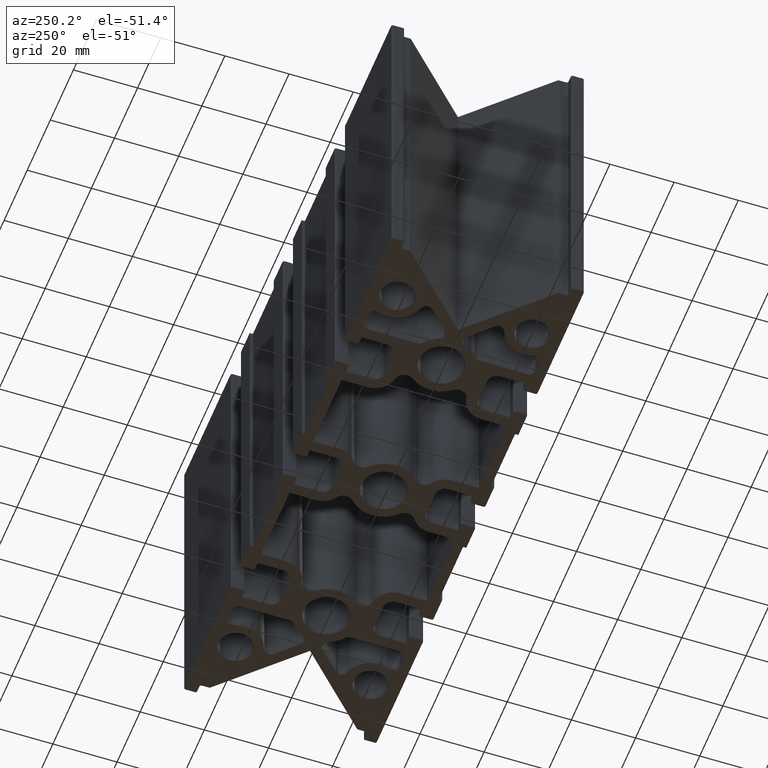
[diagram: clean part render]
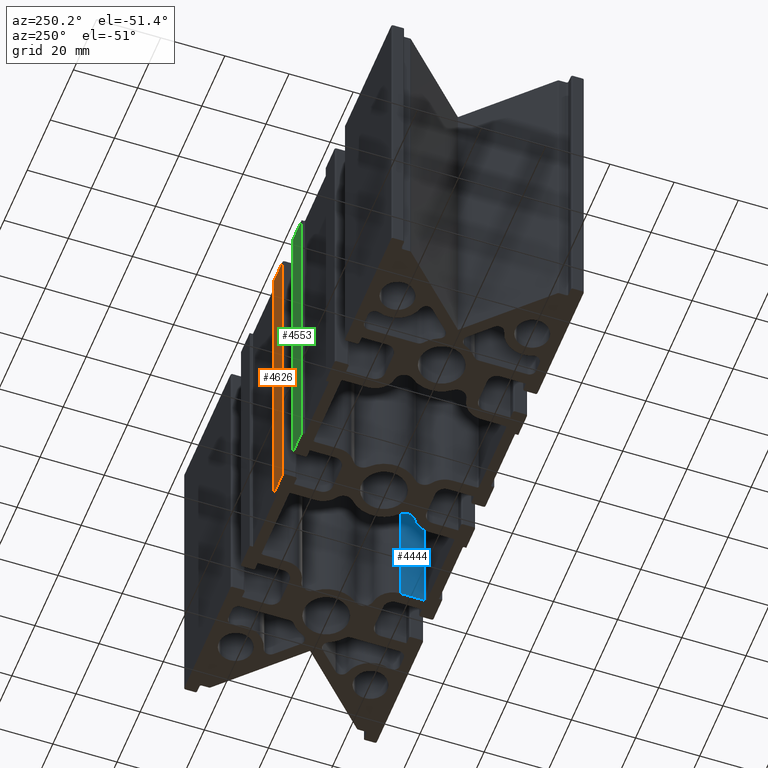
[diagram: same view with three faces highlighted in distinct colors, each labeled with its STEP entity id]
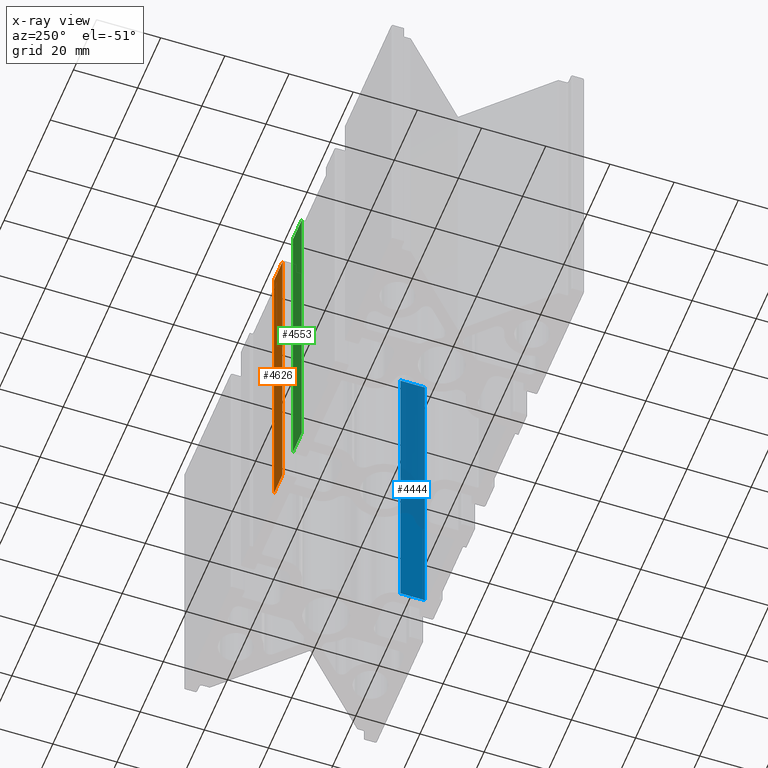
[diagram: x-ray of the same camera — body ghosted, the three highlighted faces saturated]
A machine part, auxiliary view with three faces highlighted in distinct colors.
The next image is the same camera in x-ray (body ghosted, the three faces saturated) — at least one of them is partly hidden behind the body in this view.
Their STEP definitions:

[orange] entity #4626 — the highlighted planar face has unit normal (-0, 1, 0).
#139=PLANE('',#5126);
#368=FACE_OUTER_BOUND('',#625,.T.);
#625=EDGE_LOOP('',(#4236,#4237,#4238,#4239));
#684=LINE('',#6710,#1125);
#1040=LINE('',#7818,#1481);
#1070=LINE('',#7892,#1511);
#1072=LINE('',#7895,#1513);
#1125=VECTOR('',#5303,10.);
#1481=VECTOR('',#6423,10.);
#1511=VECTOR('',#6503,10.);
#1513=VECTOR('',#6507,10.);
#1832=VERTEX_POINT('',#6707);
#1833=VERTEX_POINT('',#6709);
#2202=VERTEX_POINT('',#7815);
#2203=VERTEX_POINT('',#7817);
#2308=EDGE_CURVE('',#1832,#1833,#684,.T.);
#2863=EDGE_CURVE('',#2203,#2202,#1040,.T.);
#2902=EDGE_CURVE('',#1833,#2202,#1070,.T.);
#2904=EDGE_CURVE('',#2203,#1832,#1072,.T.);
#4236=ORIENTED_EDGE('',*,*,#2902,.F.);
#4237=ORIENTED_EDGE('',*,*,#2308,.F.);
#4238=ORIENTED_EDGE('',*,*,#2904,.F.);
#4239=ORIENTED_EDGE('',*,*,#2863,.T.);
#4626=ADVANCED_FACE('',(#368),#139,.T.);
#5126=AXIS2_PLACEMENT_3D('',#7894,#6505,#6506);
#5303=DIRECTION('',(-1.,-5.55111512312579E-16,0.));
#6423=DIRECTION('',(-1.,-5.55111512312579E-16,0.));
#6503=DIRECTION('',(0.,0.,-1.));
#6505=DIRECTION('center_axis',(-5.55111512312579E-16,1.,0.));
#6506=DIRECTION('ref_axis',(-1.,-5.55111512312579E-16,0.));
#6507=DIRECTION('',(0.,0.,1.));
#6707=CARTESIAN_POINT('',(12.1,30.,100.));
#6709=CARTESIAN_POINT('',(4.6,30.,100.));
#6710=CARTESIAN_POINT('',(12.1,30.,100.));
#7815=CARTESIAN_POINT('',(4.6,30.,0.));
#7817=CARTESIAN_POINT('',(12.1,30.,0.));
#7818=CARTESIAN_POINT('',(12.1,30.,0.));
#7892=CARTESIAN_POINT('',(4.6,30.,0.));
#7894=CARTESIAN_POINT('Origin',(12.1,30.,0.));
#7895=CARTESIAN_POINT('',(12.1,30.,0.));

[blue] entity #4444 — the highlighted planar face has unit normal (-1, -0, 0).
#53=PLANE('',#4846);
#186=FACE_OUTER_BOUND('',#430,.T.);
#430=EDGE_LOOP('',(#3283,#3284,#3285,#3286));
#763=LINE('',#7041,#1204);
#790=LINE('',#7140,#1231);
#791=LINE('',#7143,#1232);
#792=LINE('',#7144,#1233);
#1204=VECTOR('',#5556,10.);
#1231=VECTOR('',#5663,10.);
#1232=VECTOR('',#5666,10.);
#1233=VECTOR('',#5667,10.);
#1997=VERTEX_POINT('',#7038);
#1998=VERTEX_POINT('',#7040);
#2030=VERTEX_POINT('',#7138);
#2031=VERTEX_POINT('',#7142);
#2474=EDGE_CURVE('',#1997,#1998,#763,.T.);
#2524=EDGE_CURVE('',#1998,#2030,#790,.T.);
#2525=EDGE_CURVE('',#2030,#2031,#791,.T.);
#2526=EDGE_CURVE('',#1997,#2031,#792,.T.);
#3283=ORIENTED_EDGE('',*,*,#2525,.F.);
#3284=ORIENTED_EDGE('',*,*,#2524,.F.);
#3285=ORIENTED_EDGE('',*,*,#2474,.F.);
#3286=ORIENTED_EDGE('',*,*,#2526,.T.);
#4444=ADVANCED_FACE('',(#186),#53,.T.);
#4846=AXIS2_PLACEMENT_3D('',#7141,#5664,#5665);
#5556=DIRECTION('',(3.58332232308406E-15,-1.,0.));
#5663=DIRECTION('',(0.,0.,-1.));
#5664=DIRECTION('center_axis',(-1.,-3.58332232308406E-15,0.));
#5665=DIRECTION('ref_axis',(-3.58332232308406E-15,1.,0.));
#5666=DIRECTION('',(-3.58332232308406E-15,1.,0.));
#5667=DIRECTION('',(0.,0.,-1.));
#7038=CARTESIAN_POINT('',(34.7500000000001,-17.5999999999454,100.));
#7040=CARTESIAN_POINT('',(34.7500000000001,-25.2499999999978,100.));
#7041=CARTESIAN_POINT('',(34.75,-4.19056047769082,100.));
#7138=CARTESIAN_POINT('',(34.7500000000001,-25.2499999999978,0.));
#7140=CARTESIAN_POINT('',(34.7500000000001,-25.2499999999978,100.));
#7141=CARTESIAN_POINT('Origin',(34.7500000000001,-25.2499999999978,100.));
#7142=CARTESIAN_POINT('',(34.7500000000001,-17.5999999999454,0.));
#7143=CARTESIAN_POINT('',(34.75,-4.19056047769082,0.));
#7144=CARTESIAN_POINT('',(34.7500000000001,-17.5999999999454,100.));

[green] entity #4553 — the highlighted planar face has unit normal (-0, -1, 0).
#96=PLANE('',#5021);
#295=FACE_OUTER_BOUND('',#539,.T.);
#539=EDGE_LOOP('',(#3719,#3720,#3721,#3722));
#692=LINE('',#6738,#1133);
#948=LINE('',#7588,#1389);
#949=LINE('',#7591,#1390);
#950=LINE('',#7592,#1391);
#1133=VECTOR('',#5323,10.);
#1389=VECTOR('',#6171,10.);
#1390=VECTOR('',#6174,10.);
#1391=VECTOR('',#6175,10.);
#1846=VERTEX_POINT('',#6735);
#1847=VERTEX_POINT('',#6737);
#2145=VERTEX_POINT('',#7586);
#2146=VERTEX_POINT('',#7590);
#2322=EDGE_CURVE('',#1847,#1846,#692,.T.);
#2748=EDGE_CURVE('',#1846,#2145,#948,.T.);
#2749=EDGE_CURVE('',#2146,#2145,#949,.T.);
#2750=EDGE_CURVE('',#2146,#1847,#950,.T.);
#3719=ORIENTED_EDGE('',*,*,#2748,.T.);
#3720=ORIENTED_EDGE('',*,*,#2749,.F.);
#3721=ORIENTED_EDGE('',*,*,#2750,.T.);
#3722=ORIENTED_EDGE('',*,*,#2322,.T.);
#4553=ADVANCED_FACE('',(#295),#96,.F.);
#5021=AXIS2_PLACEMENT_3D('',#7589,#6172,#6173);
#5323=DIRECTION('',(1.,-5.55111512312579E-16,0.));
#6171=DIRECTION('',(0.,0.,-1.));
#6172=DIRECTION('center_axis',(-5.55111512312579E-16,-1.,0.));
#6173=DIRECTION('ref_axis',(1.,-5.55111512312579E-16,0.));
#6174=DIRECTION('',(1.,-5.55111512312579E-16,0.));
#6175=DIRECTION('',(0.,0.,1.));
#6735=CARTESIAN_POINT('',(-4.6,30.,100.));
#6737=CARTESIAN_POINT('',(-12.1,30.,100.));
#6738=CARTESIAN_POINT('',(-12.1,30.,100.));
#7586=CARTESIAN_POINT('',(-4.6,30.,0.));
#7588=CARTESIAN_POINT('',(-4.6,30.,0.));
#7589=CARTESIAN_POINT('Origin',(-12.1,30.,0.));
#7590=CARTESIAN_POINT('',(-12.1,30.,0.));
#7591=CARTESIAN_POINT('',(-12.1,30.,0.));
#7592=CARTESIAN_POINT('',(-12.1,30.,0.));